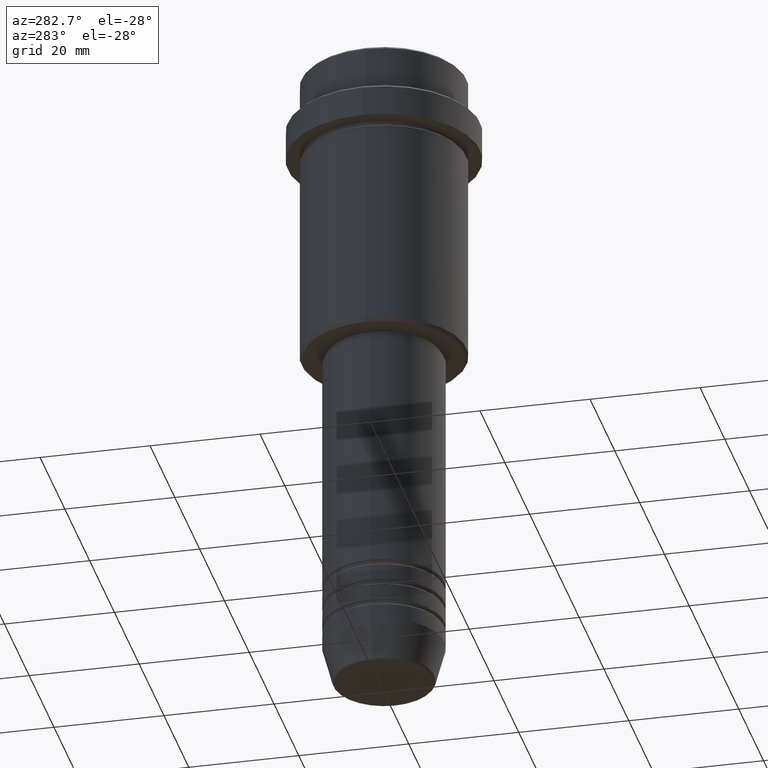
[diagram: clean part render]
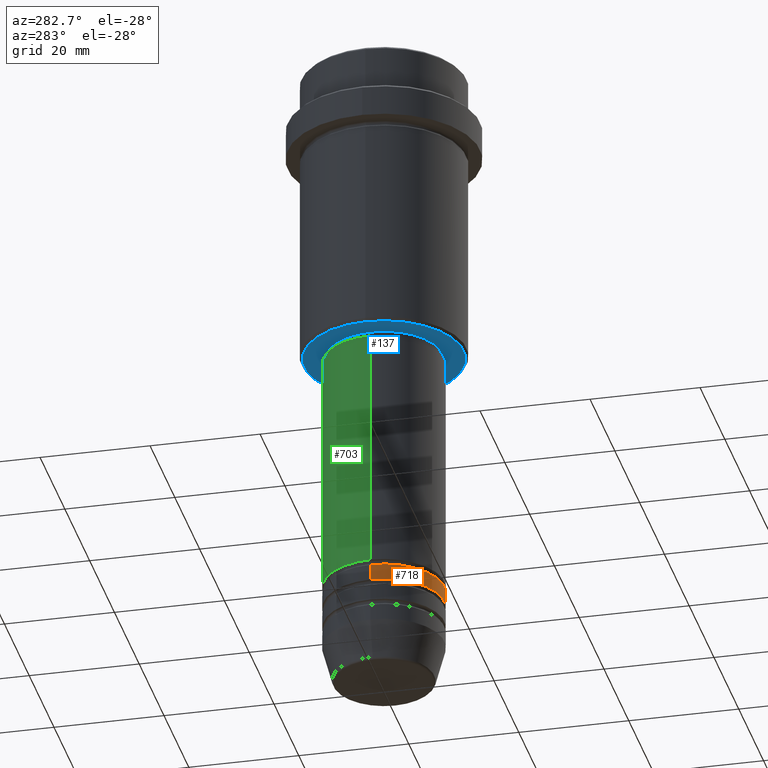
[diagram: same view with three faces highlighted in distinct colors, each labeled with its STEP entity id]
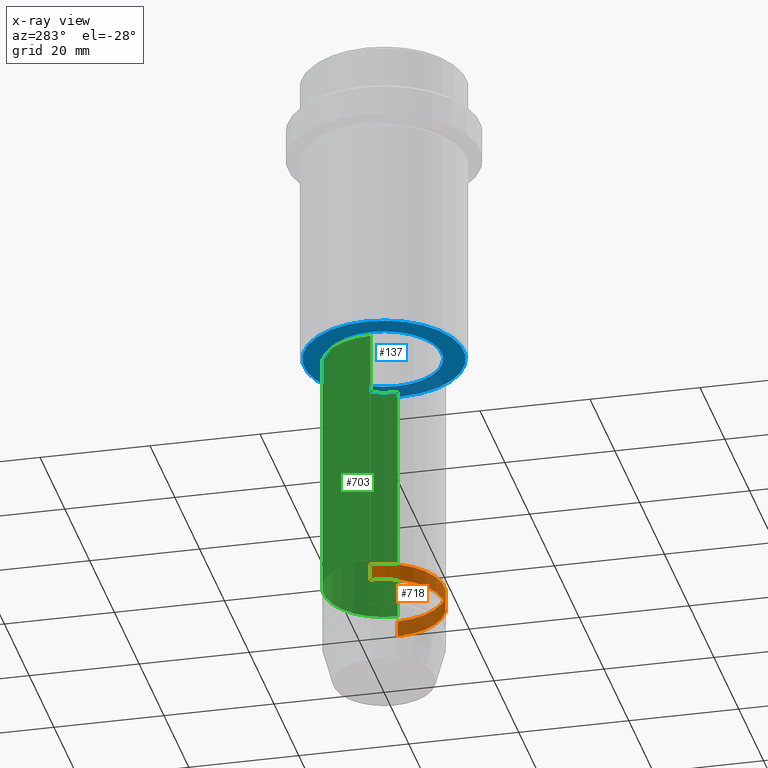
[diagram: x-ray of the same camera — body ghosted, the three highlighted faces saturated]
A machine part, auxiliary view with three faces highlighted in distinct colors.
The next image is the same camera in x-ray (body ghosted, the three faces saturated) — at least one of them is partly hidden behind the body in this view.
Their STEP definitions:

[orange] entity #718 — the highlighted cylindrical surface (partial cylindrical patch) has radius 11 mm, axis along (-0, -0, 1).
#18 = VERTEX_POINT ( 'NONE', #1248 ) ;
#35 = DIRECTION ( 'NONE',  ( 1.000000000000000000, 0.000000000000000000, 0.000000000000000000 ) ) ;
#80 = LINE ( 'NONE', #869, #1020 ) ;
#105 = AXIS2_PLACEMENT_3D ( 'NONE', #1217, #239, #676 ) ;
#110 = CARTESIAN_POINT ( 'NONE',  ( -11.00000000000000000, 1.347111479062088405E-15, 0.000000000000000000 ) ) ;
#116 = VERTEX_POINT ( 'NONE', #358 ) ;
#213 = DIRECTION ( 'NONE',  ( -0.000000000000000000, -0.000000000000000000, 1.000000000000000000 ) ) ;
#220 = ORIENTED_EDGE ( 'NONE', *, *, #1141, .F. ) ;
#239 = DIRECTION ( 'NONE',  ( -0.000000000000000000, -0.000000000000000000, 1.000000000000000000 ) ) ;
#270 = DIRECTION ( 'NONE',  ( -0.000000000000000000, -0.000000000000000000, 1.000000000000000000 ) ) ;
#358 = CARTESIAN_POINT ( 'NONE',  ( 11.00000000000000000, 0.000000000000000000, -101.9999999999999005 ) ) ;
#428 = VERTEX_POINT ( 'NONE', #961 ) ;
#446 = DIRECTION ( 'NONE',  ( -0.000000000000000000, -0.000000000000000000, 1.000000000000000000 ) ) ;
#453 = ORIENTED_EDGE ( 'NONE', *, *, #464, .T. ) ;
#464 = EDGE_CURVE ( 'NONE', #18, #116, #80, .T. ) ;
#635 = CARTESIAN_POINT ( 'NONE',  ( 0.000000000000000000, 0.000000000000000000, -101.9999999999999005 ) ) ;
#636 = EDGE_CURVE ( 'NONE', #428, #18, #888, .T. ) ;
#657 = VERTEX_POINT ( 'NONE', #1327 ) ;
#676 = DIRECTION ( 'NONE',  ( 1.000000000000000000, 0.000000000000000000, 0.000000000000000000 ) ) ;
#718 = ADVANCED_FACE ( 'NONE', ( #1323 ), #783, .T. ) ;
#739 = DIRECTION ( 'NONE',  ( 1.000000000000000000, 0.000000000000000000, 0.000000000000000000 ) ) ;
#783 = CYLINDRICAL_SURFACE ( 'NONE', #105, 11.00000000000000000 ) ;
#810 = CARTESIAN_POINT ( 'NONE',  ( 0.000000000000000000, 0.000000000000000000, -104.9999999999999005 ) ) ;
#828 = DIRECTION ( 'NONE',  ( -0.000000000000000000, -0.000000000000000000, 1.000000000000000000 ) ) ;
#867 = LINE ( 'NONE', #110, #1274 ) ;
#869 = CARTESIAN_POINT ( 'NONE',  ( 11.00000000000000000, 0.000000000000000000, 0.000000000000000000 ) ) ;
#888 = CIRCLE ( 'NONE', #1232, 11.00000000000000000 ) ;
#961 = CARTESIAN_POINT ( 'NONE',  ( -11.00000000000000000, 1.347111479062088405E-15, -104.9999999999999005 ) ) ;
#1020 = VECTOR ( 'NONE', #213, 1000.000000000000000 ) ;
#1141 = EDGE_CURVE ( 'NONE', #657, #116, #1257, .T. ) ;
#1161 = ORIENTED_EDGE ( 'NONE', *, *, #636, .T. ) ;
#1186 = AXIS2_PLACEMENT_3D ( 'NONE', #635, #828, #739 ) ;
#1196 = ORIENTED_EDGE ( 'NONE', *, *, #1307, .F. ) ;
#1217 = CARTESIAN_POINT ( 'NONE',  ( 0.000000000000000000, 0.000000000000000000, 0.000000000000000000 ) ) ;
#1232 = AXIS2_PLACEMENT_3D ( 'NONE', #810, #270, #35 ) ;
#1248 = CARTESIAN_POINT ( 'NONE',  ( 11.00000000000000000, 0.000000000000000000, -104.9999999999999005 ) ) ;
#1257 = CIRCLE ( 'NONE', #1186, 11.00000000000000000 ) ;
#1274 = VECTOR ( 'NONE', #446, 1000.000000000000000 ) ;
#1281 = EDGE_LOOP ( 'NONE', ( #1196, #1161, #453, #220 ) ) ;
#1307 = EDGE_CURVE ( 'NONE', #428, #657, #867, .T. ) ;
#1323 = FACE_OUTER_BOUND ( 'NONE', #1281, .T. ) ;
#1327 = CARTESIAN_POINT ( 'NONE',  ( -11.00000000000000000, 1.347111479062088405E-15, -101.9999999999999005 ) ) ;

[blue] entity #137 — the highlighted planar face has unit normal (0, 0, -1).
#20 = DIRECTION ( 'NONE',  ( 0.000000000000000000, 0.000000000000000000, -1.000000000000000000 ) ) ;
#32 = AXIS2_PLACEMENT_3D ( 'NONE', #386, #598, #45 ) ;
#45 = DIRECTION ( 'NONE',  ( -1.000000000000000000, 0.000000000000000000, -0.000000000000000000 ) ) ;
#78 = CIRCLE ( 'NONE', #619, 10.49999999999999289 ) ;
#98 = EDGE_CURVE ( 'NONE', #330, #890, #932, .T. ) ;
#137 = ADVANCED_FACE ( 'NONE', ( #258, #1241 ), #1148, .T. ) ;
#258 = FACE_OUTER_BOUND ( 'NONE', #470, .T. ) ;
#262 = CARTESIAN_POINT ( 'NONE',  ( 10.49999999999999289, 0.000000000000000000, -55.00000000000000711 ) ) ;
#292 = AXIS2_PLACEMENT_3D ( 'NONE', #631, #413, #1285 ) ;
#294 = EDGE_CURVE ( 'NONE', #1318, #850, #973, .T. ) ;
#322 = CIRCLE ( 'NONE', #841, 14.49999999999996980 ) ;
#330 = VERTEX_POINT ( 'NONE', #262 ) ;
#345 = ORIENTED_EDGE ( 'NONE', *, *, #98, .T. ) ;
#349 = DIRECTION ( 'NONE',  ( -1.000000000000000000, 0.000000000000000000, 0.000000000000000000 ) ) ;
#375 = CARTESIAN_POINT ( 'NONE',  ( 0.000000000000000000, 0.000000000000000000, -55.00000000000000711 ) ) ;
#386 = CARTESIAN_POINT ( 'NONE',  ( 0.000000000000000000, 15.00000000000000000, -55.00000000000000711 ) ) ;
#406 = ORIENTED_EDGE ( 'NONE', *, *, #294, .T. ) ;
#413 = DIRECTION ( 'NONE',  ( -0.000000000000000000, -0.000000000000000000, 1.000000000000000000 ) ) ;
#431 = CARTESIAN_POINT ( 'NONE',  ( -10.49999999999999289, 1.285879139104720042E-15, -55.00000000000000711 ) ) ;
#470 = EDGE_LOOP ( 'NONE', ( #406, #1336 ) ) ;
#473 = DIRECTION ( 'NONE',  ( -0.000000000000000000, -0.000000000000000000, 1.000000000000000000 ) ) ;
#579 = CARTESIAN_POINT ( 'NONE',  ( 0.000000000000000000, 0.000000000000000000, -55.00000000000000711 ) ) ;
#598 = DIRECTION ( 'NONE',  ( 0.000000000000000000, 0.000000000000000000, -1.000000000000000000 ) ) ;
#619 = AXIS2_PLACEMENT_3D ( 'NONE', #887, #473, #994 ) ;
#631 = CARTESIAN_POINT ( 'NONE',  ( 0.000000000000000000, 0.000000000000000000, -55.00000000000000711 ) ) ;
#665 = EDGE_CURVE ( 'NONE', #850, #1318, #322, .T. ) ;
#670 = EDGE_CURVE ( 'NONE', #890, #330, #78, .T. ) ;
#694 = ORIENTED_EDGE ( 'NONE', *, *, #670, .T. ) ;
#720 = EDGE_LOOP ( 'NONE', ( #345, #694 ) ) ;
#833 = CARTESIAN_POINT ( 'NONE',  ( -14.49999999999996980, 1.806354028742344224E-15, -55.00000000000000711 ) ) ;
#841 = AXIS2_PLACEMENT_3D ( 'NONE', #579, #20, #1233 ) ;
#850 = VERTEX_POINT ( 'NONE', #833 ) ;
#880 = CARTESIAN_POINT ( 'NONE',  ( 14.49999999999996980, 0.000000000000000000, -55.00000000000000711 ) ) ;
#887 = CARTESIAN_POINT ( 'NONE',  ( 0.000000000000000000, 0.000000000000000000, -55.00000000000000711 ) ) ;
#890 = VERTEX_POINT ( 'NONE', #431 ) ;
#932 = CIRCLE ( 'NONE', #292, 10.49999999999999289 ) ;
#973 = CIRCLE ( 'NONE', #1229, 14.49999999999996980 ) ;
#994 = DIRECTION ( 'NONE',  ( 1.000000000000000000, 0.000000000000000000, 0.000000000000000000 ) ) ;
#1133 = DIRECTION ( 'NONE',  ( 0.000000000000000000, 0.000000000000000000, -1.000000000000000000 ) ) ;
#1148 = PLANE ( 'NONE',  #32 ) ;
#1229 = AXIS2_PLACEMENT_3D ( 'NONE', #375, #1133, #349 ) ;
#1233 = DIRECTION ( 'NONE',  ( -1.000000000000000000, 0.000000000000000000, 0.000000000000000000 ) ) ;
#1241 = FACE_BOUND ( 'NONE', #720, .T. ) ;
#1285 = DIRECTION ( 'NONE',  ( 1.000000000000000000, 0.000000000000000000, 0.000000000000000000 ) ) ;
#1318 = VERTEX_POINT ( 'NONE', #880 ) ;
#1336 = ORIENTED_EDGE ( 'NONE', *, *, #665, .T. ) ;

[green] entity #703 — the highlighted cylindrical surface (partial cylindrical patch) has radius 11 mm, axis along (-0, -0, 1).
#5 = DIRECTION ( 'NONE',  ( -0.000000000000000000, -0.000000000000000000, 1.000000000000000000 ) ) ;
#30 = LINE ( 'NONE', #708, #1343 ) ;
#156 = EDGE_CURVE ( 'NONE', #300, #830, #1319, .T. ) ;
#161 = CARTESIAN_POINT ( 'NONE',  ( -11.00000000000000000, 1.347111479062088405E-15, -100.9999999999999005 ) ) ;
#188 = CARTESIAN_POINT ( 'NONE',  ( 0.000000000000000000, 0.000000000000000000, -56.00000000000002132 ) ) ;
#214 = ORIENTED_EDGE ( 'NONE', *, *, #417, .T. ) ;
#264 = EDGE_LOOP ( 'NONE', ( #214, #873, #645, #429 ) ) ;
#300 = VERTEX_POINT ( 'NONE', #1097 ) ;
#339 = EDGE_CURVE ( 'NONE', #359, #300, #726, .T. ) ;
#359 = VERTEX_POINT ( 'NONE', #1348 ) ;
#370 = DIRECTION ( 'NONE',  ( -0.000000000000000000, -0.000000000000000000, 1.000000000000000000 ) ) ;
#417 = EDGE_CURVE ( 'NONE', #359, #1110, #545, .T. ) ;
#429 = ORIENTED_EDGE ( 'NONE', *, *, #339, .F. ) ;
#457 = DIRECTION ( 'NONE',  ( 1.000000000000000000, 0.000000000000000000, 0.000000000000000000 ) ) ;
#532 = DIRECTION ( 'NONE',  ( -0.000000000000000000, -0.000000000000000000, 1.000000000000000000 ) ) ;
#545 = CIRCLE ( 'NONE', #840, 11.00000000000000000 ) ;
#578 = DIRECTION ( 'NONE',  ( 1.000000000000000000, 0.000000000000000000, 0.000000000000000000 ) ) ;
#594 = VECTOR ( 'NONE', #920, 1000.000000000000000 ) ;
#645 = ORIENTED_EDGE ( 'NONE', *, *, #156, .F. ) ;
#703 = ADVANCED_FACE ( 'NONE', ( #1349 ), #1000, .T. ) ;
#708 = CARTESIAN_POINT ( 'NONE',  ( -11.00000000000000000, 1.347111479062088405E-15, 0.000000000000000000 ) ) ;
#721 = DIRECTION ( 'NONE',  ( 1.000000000000000000, 0.000000000000000000, 0.000000000000000000 ) ) ;
#726 = LINE ( 'NONE', #1147, #594 ) ;
#776 = AXIS2_PLACEMENT_3D ( 'NONE', #813, #5, #457 ) ;
#813 = CARTESIAN_POINT ( 'NONE',  ( 0.000000000000000000, 0.000000000000000000, 0.000000000000000000 ) ) ;
#830 = VERTEX_POINT ( 'NONE', #945 ) ;
#840 = AXIS2_PLACEMENT_3D ( 'NONE', #909, #370, #578 ) ;
#873 = ORIENTED_EDGE ( 'NONE', *, *, #1065, .T. ) ;
#909 = CARTESIAN_POINT ( 'NONE',  ( 0.000000000000000000, 0.000000000000000000, -100.9999999999999005 ) ) ;
#911 = AXIS2_PLACEMENT_3D ( 'NONE', #188, #532, #721 ) ;
#920 = DIRECTION ( 'NONE',  ( -0.000000000000000000, -0.000000000000000000, 1.000000000000000000 ) ) ;
#945 = CARTESIAN_POINT ( 'NONE',  ( -10.99999999999999822, 1.347111479062088207E-15, -56.00000000000002132 ) ) ;
#1000 = CYLINDRICAL_SURFACE ( 'NONE', #776, 11.00000000000000000 ) ;
#1065 = EDGE_CURVE ( 'NONE', #1110, #830, #30, .T. ) ;
#1097 = CARTESIAN_POINT ( 'NONE',  ( 10.99999999999999822, 0.000000000000000000, -56.00000000000002132 ) ) ;
#1110 = VERTEX_POINT ( 'NONE', #161 ) ;
#1147 = CARTESIAN_POINT ( 'NONE',  ( 11.00000000000000000, 0.000000000000000000, 0.000000000000000000 ) ) ;
#1319 = CIRCLE ( 'NONE', #911, 10.99999999999999822 ) ;
#1343 = VECTOR ( 'NONE', #1353, 1000.000000000000000 ) ;
#1348 = CARTESIAN_POINT ( 'NONE',  ( 11.00000000000000000, 0.000000000000000000, -100.9999999999999005 ) ) ;
#1349 = FACE_OUTER_BOUND ( 'NONE', #264, .T. ) ;
#1353 = DIRECTION ( 'NONE',  ( -0.000000000000000000, -0.000000000000000000, 1.000000000000000000 ) ) ;